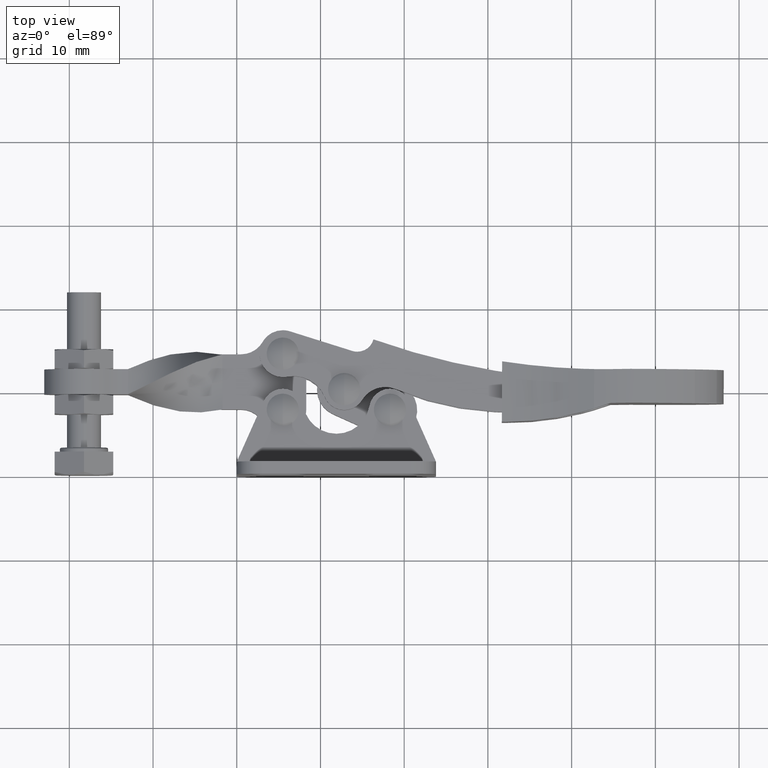
[diagram: clean part render]
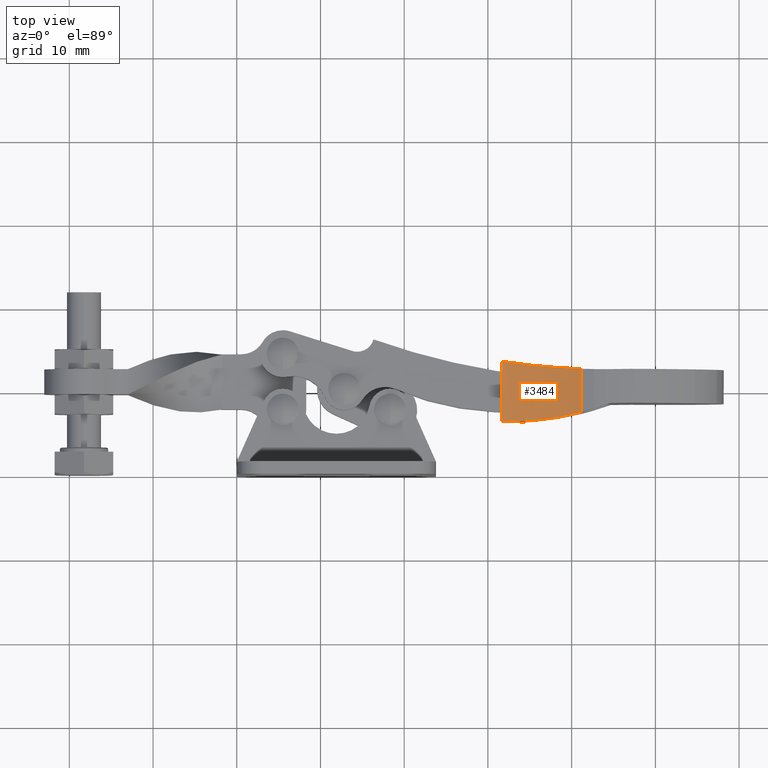
[diagram: same view with one face highlighted and labeled with its STEP entity id]
A machine part, top view. The second image highlights one B-rep face of the part: STEP entity #3484.
In plain terms, the highlighted cylindrical surface (partial cylindrical patch) has radius 28.264 mm, axis along (0.0049, 1, 0).
Its self-contained STEP definition (entity closure, byte-faithful):
#97 = CARTESIAN_POINT ( 'NONE',  ( 37.53768626233278400, 6.722946228751922600, 3.749484344167970400 ) ) ;
#126 = CARTESIAN_POINT ( 'NONE',  ( 38.28930968366841400, 6.842946415425653400, 3.948143571351597500 ) ) ;
#238 = VERTEX_POINT ( 'NONE', #4887 ) ;
#278 = CARTESIAN_POINT ( 'NONE',  ( 39.76101062193107800, 7.125187601318156500, 4.401500762740212700 ) ) ;
#481 = ORIENTED_EDGE ( 'NONE', *, *, #4851, .F. ) ;
#890 = CYLINDRICAL_SURFACE ( 'NONE', #2756, 28.26397758238002900 ) ;
#908 = CARTESIAN_POINT ( 'NONE',  ( 34.93007059646971200, 13.12096126120997600, 3.222326210805070100 ) ) ;
#1143 = CARTESIAN_POINT ( 'NONE',  ( 40.48241992111948000, 7.287604515015356600, 4.656497376563666400 ) ) ;
#1153 = CARTESIAN_POINT ( 'NONE',  ( 32.50306921835821300, 13.43878978182738500, 2.964164175520207500 ) ) ;
#1172 = CARTESIAN_POINT ( 'NONE',  ( 41.19003315158662600, 7.469679679679313000, 4.938980710330131500 ) ) ;
#1640 = CARTESIAN_POINT ( 'NONE',  ( 31.66014647689922900, 6.353469047029791200, 2.936523897291714900 ) ) ;
#1644 = DIRECTION ( 'NONE',  ( 0.004931127191342707700, 0.9999878419184019500, 1.735405202594765700E-022 ) ) ;
#1653 = CARTESIAN_POINT ( 'NONE',  ( 31.82302534415237700, 6.350430444469494300, 2.942096325762772600 ) ) ;
#1709 = CARTESIAN_POINT ( 'NONE',  ( 31.98575871755809900, 6.348513530115528900, 2.949074128014813800 ) ) ;
#1718 = CARTESIAN_POINT ( 'NONE',  ( 33.31142813305817900, 13.32482777962005500, 3.026477166381893000 ) ) ;
#1935 = LINE ( 'NONE', #6281, #2016 ) ;
#1969 = CARTESIAN_POINT ( 'NONE',  ( 32.14834714216340900, 6.347711776166167200, 2.957452629810651600 ) ) ;
#2016 = VECTOR ( 'NONE', #1644, 1000.000000000000000 ) ;
#2020 = CARTESIAN_POINT ( 'NONE',  ( 32.14834714216340900, 6.347711776166167200, 2.957452629810651600 ) ) ;
#2227 = ORIENTED_EDGE ( 'NONE', *, *, #4854, .F. ) ;
#2318 = ORIENTED_EDGE ( 'NONE', *, *, #4337, .F. ) ;
#2353 = VERTEX_POINT ( 'NONE', #1969 ) ;
#2756 = AXIS2_PLACEMENT_3D ( 'NONE', #3332, #3446, #3649 ) ;
#3180 = CARTESIAN_POINT ( 'NONE',  ( 31.66014647689922900, 6.353469047029791200, 2.936523897291714900 ) ) ;
#3332 = CARTESIAN_POINT ( 'NONE',  ( 30.69786146243282900, 7.175657090220099100, 31.18397758238002000 ) ) ;
#3446 = DIRECTION ( 'NONE',  ( 0.004931127191342707700, 0.9999878419184019500, 1.735405202594765700E-022 ) ) ;
#3484 = ADVANCED_FACE ( 'NONE', ( #4645 ), #890, .F. ) ;
#3518 = VERTEX_POINT ( 'NONE', #7406 ) ;
#3649 = DIRECTION ( 'NONE',  ( -0.9999878419184019500, 0.004931127191342719900, 0.0000000000000000000 ) ) ;
#4337 = EDGE_CURVE ( 'NONE', #2353, #9194, #8681, .T. ) ;
#4611 = EDGE_CURVE ( 'NONE', #3518, #238, #1935, .T. ) ;
#4645 = FACE_OUTER_BOUND ( 'NONE', #8327, .T. ) ;
#4768 = CARTESIAN_POINT ( 'NONE',  ( 35.24498331106061500, 6.433950286737501600, 3.244941534618296600 ) ) ;
#4851 = EDGE_CURVE ( 'NONE', #3518, #2353, #5858, .T. ) ;
#4854 = EDGE_CURVE ( 'NONE', #7138, #238, #6611, .T. ) ;
#4868 = EDGE_CURVE ( 'NONE', #7138, #9194, #7233, .T. ) ;
#4887 = CARTESIAN_POINT ( 'NONE',  ( 41.21551828783435000, 12.63783402015160300, 4.938980710330131500 ) ) ;
#5030 = CARTESIAN_POINT ( 'NONE',  ( 31.69570709487372200, 13.56483964157241600, 2.936523897291710900 ) ) ;
#5440 = VECTOR ( 'NONE', #6664, 1000.000000000000000 ) ;
#5858 = B_SPLINE_CURVE_WITH_KNOTS ( 'NONE', 3,
 ( #1172, #1143, #278, #126, #97, #4768, #8118, #6826 ),
 .UNSPECIFIED., .F., .F.,
 ( 4, 2, 2, 4 ),
 ( 0.02388161381825140000, 0.02620885241037096400, 0.02853609100249052500, 0.03319056818672962800 ),
 .UNSPECIFIED. ) ;
#5991 = CARTESIAN_POINT ( 'NONE',  ( 35.74371631611440100, 13.03080901157345300, 3.356792368360055800 ) ) ;
#6281 = CARTESIAN_POINT ( 'NONE',  ( 41.18832817862029600, 7.123926635602942700, 4.938980710330131500 ) ) ;
#6568 = CARTESIAN_POINT ( 'NONE',  ( 31.66417734248552000, 7.170892005774259600, 2.936523897291709600 ) ) ;
#6611 = B_SPLINE_CURVE_WITH_KNOTS ( 'NONE', 3,
 ( #5030, #1153, #1718, #908, #5991, #9140, #9128, #9111 ),
 .UNSPECIFIED., .F., .F.,
 ( 4, 2, 2, 4 ),
 ( 0.02480534219503079800, 0.02724759306949205500, 0.02968984394395331200, 0.03457434569287584600 ),
 .UNSPECIFIED. ) ;
#6664 = DIRECTION ( 'NONE',  ( -0.004931127191342707700, -0.9999878419184019500, -1.735405202594765700E-022 ) ) ;
#6826 = CARTESIAN_POINT ( 'NONE',  ( 32.14834714216340900, 6.347711776166167200, 2.957452629810651600 ) ) ;
#7138 = VERTEX_POINT ( 'NONE', #8997 ) ;
#7233 = LINE ( 'NONE', #6568, #5440 ) ;
#7406 = CARTESIAN_POINT ( 'NONE',  ( 41.19003315158662600, 7.469679679679313000, 4.938980710330131500 ) ) ;
#7773 = ORIENTED_EDGE ( 'NONE', *, *, #4868, .T. ) ;
#8118 = CARTESIAN_POINT ( 'NONE',  ( 33.70325155351765300, 6.340044251521011800, 3.037579917066878500 ) ) ;
#8327 = EDGE_LOOP ( 'NONE', ( #2227, #7773, #2318, #481, #8794 ) ) ;
#8681 = B_SPLINE_CURVE_WITH_KNOTS ( 'NONE', 3,
 ( #2020, #1709, #1653, #1640 ),
 .UNSPECIFIED., .F., .F.,
 ( 4, 4 ),
 ( 0.03319056818672962800, 0.03367726312901721900 ),
 .UNSPECIFIED. ) ;
#8794 = ORIENTED_EDGE ( 'NONE', *, *, #4611, .T. ) ;
#8997 = CARTESIAN_POINT ( 'NONE',  ( 31.69570709487372200, 13.56483964157241600, 2.936523897291710900 ) ) ;
#9111 = CARTESIAN_POINT ( 'NONE',  ( 41.21551828783435000, 12.63783402015160300, 4.938980710330131500 ) ) ;
#9128 = CARTESIAN_POINT ( 'NONE',  ( 39.70156294996823500, 12.69731095487154200, 4.333715831542186900 ) ) ;
#9140 = CARTESIAN_POINT ( 'NONE',  ( 38.14438695314360900, 12.80003185160662000, 3.861962088785966700 ) ) ;
#9194 = VERTEX_POINT ( 'NONE', #3180 ) ;